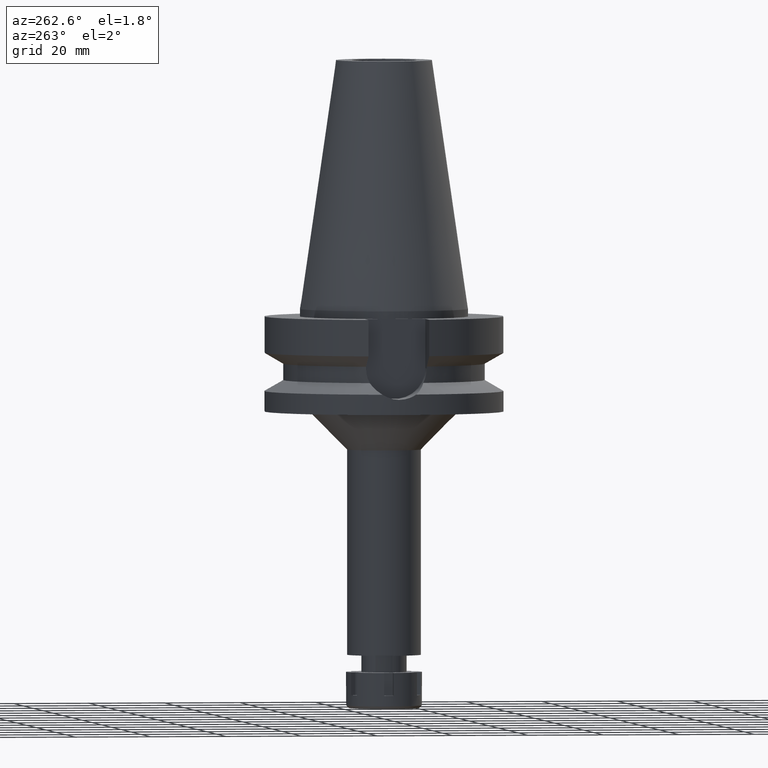
[diagram: clean part render]
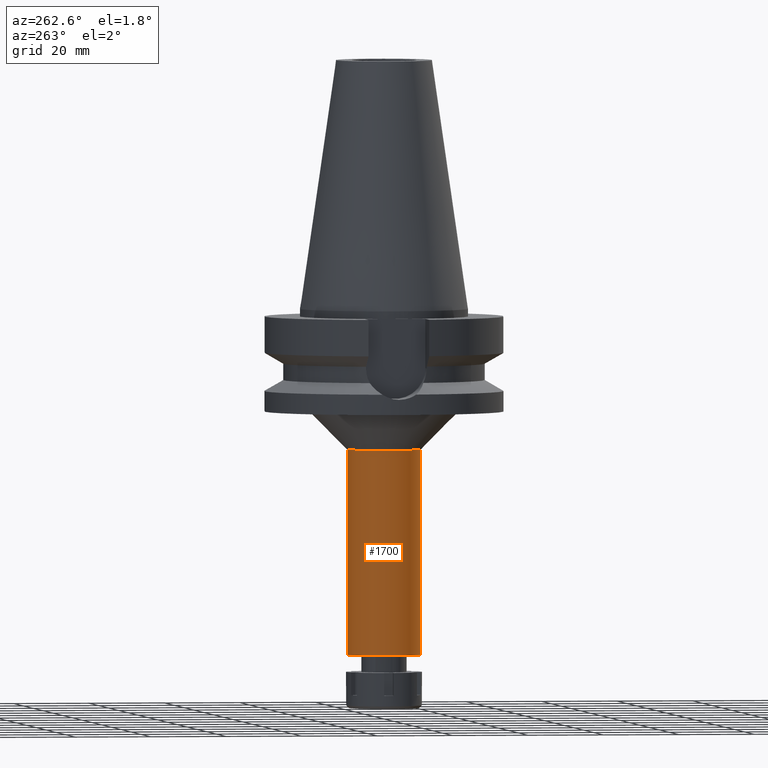
[diagram: same view with one face highlighted and labeled with its STEP entity id]
A machine part, auxiliary view. The second image highlights one B-rep face of the part: STEP entity #1700.
In plain terms, the highlighted cylindrical surface (partial cylindrical patch) has radius 9.75 mm, axis along (0, 0, -1).
Its self-contained STEP definition (entity closure, byte-faithful):
#2 = ORIENTED_EDGE ( 'NONE', *, *, #3051, .T. ) ;
#44 = FACE_OUTER_BOUND ( 'NONE', #3217, .T. ) ;
#83 = CARTESIAN_POINT ( 'NONE',  ( 0.0000000000000000000, -9.750000000000000000, -37.00000000000000000 ) ) ;
#142 = DIRECTION ( 'NONE',  ( 0.0000000000000000000, 0.0000000000000000000, 1.000000000000000000 ) ) ;
#364 = CARTESIAN_POINT ( 'NONE',  ( 0.0000000000000000000, 2.126844096079000037E-14, -91.00000000000000000 ) ) ;
#417 = AXIS2_PLACEMENT_3D ( 'NONE', #1423, #1692, #2796 ) ;
#440 = VERTEX_POINT ( 'NONE', #980 ) ;
#525 = AXIS2_PLACEMENT_3D ( 'NONE', #364, #142, #2657 ) ;
#680 = CARTESIAN_POINT ( 'NONE',  ( 0.0000000000000000000, 9.750000000000000000, -37.00000000000000000 ) ) ;
#701 = CIRCLE ( 'NONE', #525, 9.750000000000000000 ) ;
#777 = AXIS2_PLACEMENT_3D ( 'NONE', #3465, #942, #1186 ) ;
#942 = DIRECTION ( 'NONE',  ( 0.0000000000000000000, 0.0000000000000000000, -1.000000000000000000 ) ) ;
#957 = CIRCLE ( 'NONE', #777, 9.750000000000000000 ) ;
#980 = CARTESIAN_POINT ( 'NONE',  ( 0.0000000000000000000, 9.750000000000000000, -37.00000000000000000 ) ) ;
#1002 = DIRECTION ( 'NONE',  ( 0.0000000000000000000, 0.0000000000000000000, -1.000000000000000000 ) ) ;
#1038 = LINE ( 'NONE', #680, #1365 ) ;
#1186 = DIRECTION ( 'NONE',  ( 0.0000000000000000000, -1.000000000000000000, 0.0000000000000000000 ) ) ;
#1191 = DIRECTION ( 'NONE',  ( 0.0000000000000000000, 0.0000000000000000000, -1.000000000000000000 ) ) ;
#1202 = ORIENTED_EDGE ( 'NONE', *, *, #3445, .T. ) ;
#1365 = VECTOR ( 'NONE', #1002, 1000.000000000000000 ) ;
#1386 = CYLINDRICAL_SURFACE ( 'NONE', #417, 9.750000000000000000 ) ;
#1423 = CARTESIAN_POINT ( 'NONE',  ( 0.0000000000000000000, 2.126844096079000037E-14, 73.67000000000000171 ) ) ;
#1482 = ORIENTED_EDGE ( 'NONE', *, *, #1593, .T. ) ;
#1593 = EDGE_CURVE ( 'NONE', #2933, #3162, #701, .T. ) ;
#1692 = DIRECTION ( 'NONE',  ( 0.0000000000000000000, 0.0000000000000000000, -1.000000000000000000 ) ) ;
#1700 = ADVANCED_FACE ( 'NONE', ( #44 ), #1386, .T. ) ;
#1865 = CARTESIAN_POINT ( 'NONE',  ( 0.0000000000000000000, -9.750000000000000000, -91.00000000000000000 ) ) ;
#2294 = CARTESIAN_POINT ( 'NONE',  ( 0.0000000000000000000, -9.750000000000000000, -37.00000000000000000 ) ) ;
#2341 = CARTESIAN_POINT ( 'NONE',  ( 0.0000000000000000000, 9.750000000000000000, -91.00000000000000000 ) ) ;
#2390 = VERTEX_POINT ( 'NONE', #2294 ) ;
#2600 = LINE ( 'NONE', #83, #3125 ) ;
#2657 = DIRECTION ( 'NONE',  ( 0.0000000000000000000, 1.000000000000000000, 0.0000000000000000000 ) ) ;
#2796 = DIRECTION ( 'NONE',  ( 0.0000000000000000000, -1.000000000000000000, 0.0000000000000000000 ) ) ;
#2933 = VERTEX_POINT ( 'NONE', #2341 ) ;
#2962 = EDGE_CURVE ( 'NONE', #2390, #3162, #2600, .T. ) ;
#3051 = EDGE_CURVE ( 'NONE', #440, #2933, #1038, .T. ) ;
#3125 = VECTOR ( 'NONE', #1191, 1000.000000000000000 ) ;
#3162 = VERTEX_POINT ( 'NONE', #1865 ) ;
#3217 = EDGE_LOOP ( 'NONE', ( #1482, #3441, #1202, #2 ) ) ;
#3441 = ORIENTED_EDGE ( 'NONE', *, *, #2962, .F. ) ;
#3445 = EDGE_CURVE ( 'NONE', #2390, #440, #957, .T. ) ;
#3465 = CARTESIAN_POINT ( 'NONE',  ( 0.0000000000000000000, 0.0000000000000000000, -37.00000000000000000 ) ) ;